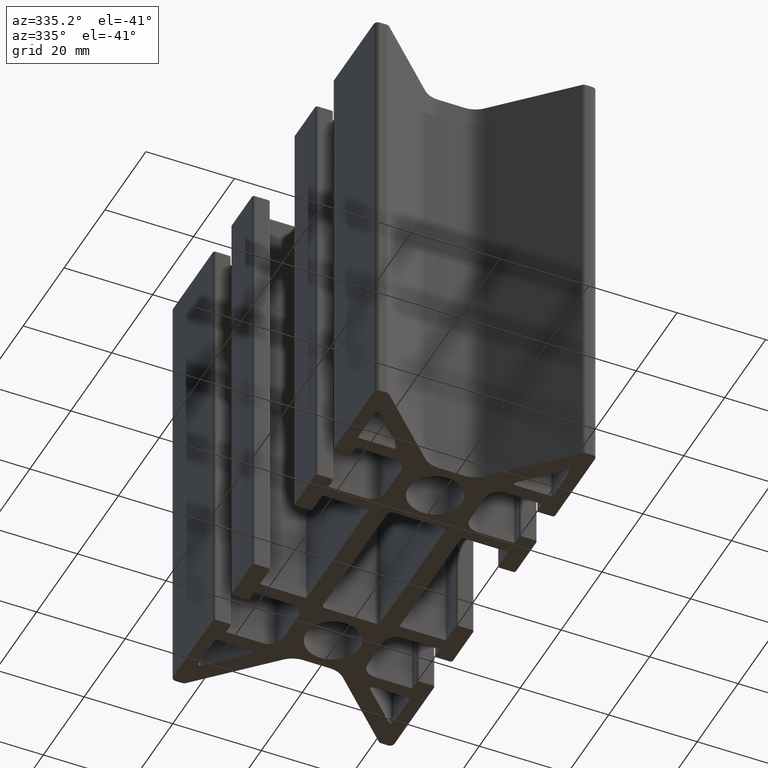
[diagram: clean part render]
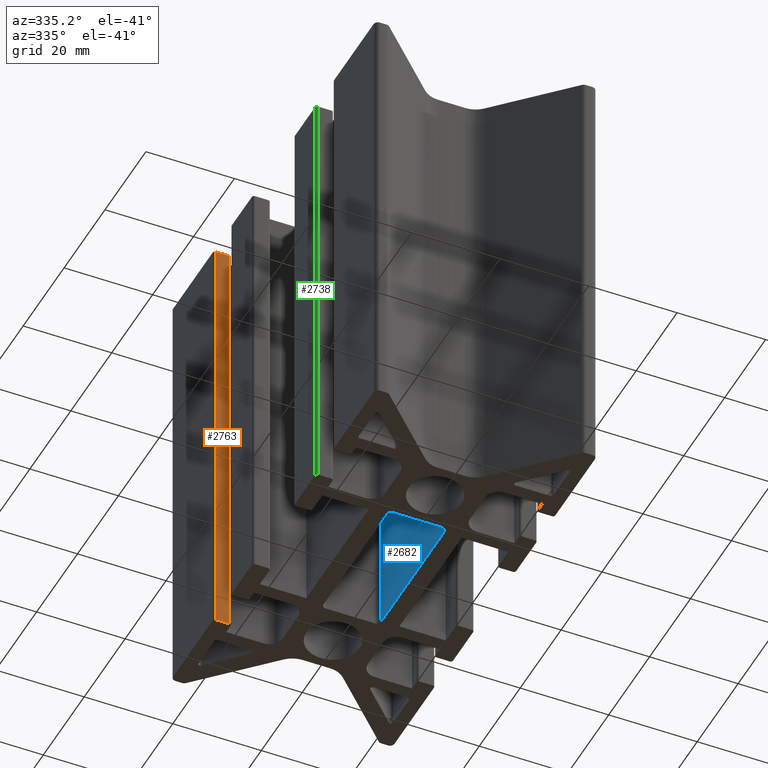
[diagram: same view with three faces highlighted in distinct colors, each labeled with its STEP entity id]
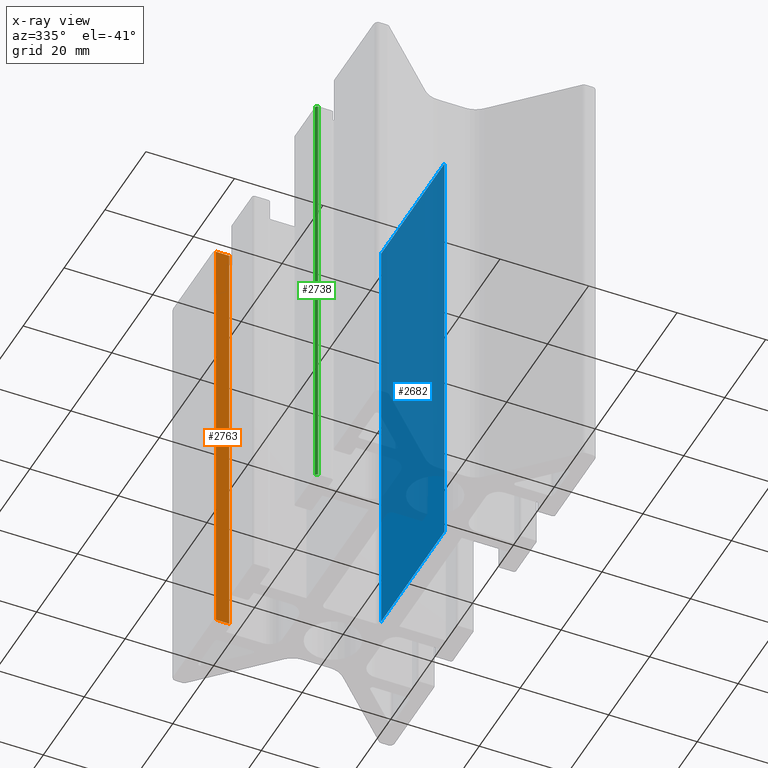
[diagram: x-ray of the same camera — body ghosted, the three highlighted faces saturated]
A machine part, auxiliary view with three faces highlighted in distinct colors.
The next image is the same camera in x-ray (body ghosted, the three faces saturated) — at least one of them is partly hidden behind the body in this view.
Their STEP definitions:

[orange] entity #2763 — the highlighted planar face has unit normal (-0, -1, 0).
#76=PLANE('',#3006);
#193=FACE_OUTER_BOUND('',#342,.T.);
#342=EDGE_LOOP('',(#2259,#2260,#2261,#2262));
#622=LINE('',#4209,#910);
#730=LINE('',#4512,#1018);
#731=LINE('',#4515,#1019);
#732=LINE('',#4516,#1020);
#910=VECTOR('',#3364,3.00000000000109);
#1018=VECTOR('',#3658,100.);
#1019=VECTOR('',#3661,3.00000000000109);
#1020=VECTOR('',#3662,100.);
#1223=VERTEX_POINT('',#4206);
#1224=VERTEX_POINT('',#4208);
#1326=VERTEX_POINT('',#4510);
#1327=VERTEX_POINT('',#4514);
#1531=EDGE_CURVE('',#1223,#1224,#622,.T.);
#1683=EDGE_CURVE('',#1223,#1326,#730,.T.);
#1684=EDGE_CURVE('',#1327,#1326,#731,.T.);
#1685=EDGE_CURVE('',#1224,#1327,#732,.T.);
#2259=ORIENTED_EDGE('',*,*,#1683,.T.);
#2260=ORIENTED_EDGE('',*,*,#1684,.F.);
#2261=ORIENTED_EDGE('',*,*,#1685,.F.);
#2262=ORIENTED_EDGE('',*,*,#1531,.F.);
#2763=ADVANCED_FACE('',(#193),#76,.T.);
#3006=AXIS2_PLACEMENT_3D('',#4513,#3659,#3660);
#3364=DIRECTION('',(-1.,1.48029736616634E-15,0.));
#3658=DIRECTION('',(0.,0.,1.));
#3659=DIRECTION('center_axis',(-1.48029736616634E-15,-1.,0.));
#3660=DIRECTION('ref_axis',(1.,-1.4210854715202E-15,0.));
#3661=DIRECTION('',(1.,-1.48029736616634E-15,0.));
#3662=DIRECTION('',(0.,0.,1.));
#4206=CARTESIAN_POINT('',(-21.5000000000007,29.1500000000119,-50.));
#4208=CARTESIAN_POINT('',(-24.5000000000018,29.150000000012,-50.));
#4209=CARTESIAN_POINT('',(-24.5000000000018,29.150000000012,-50.));
#4510=CARTESIAN_POINT('',(-21.5000000000007,29.1500000000119,50.));
#4512=CARTESIAN_POINT('',(-21.5000000000007,29.1500000000119,0.));
#4513=CARTESIAN_POINT('Origin',(-24.5000000000018,29.150000000012,0.));
#4514=CARTESIAN_POINT('',(-24.5000000000018,29.150000000012,50.));
#4515=CARTESIAN_POINT('',(-24.5000000000018,29.150000000012,50.));
#4516=CARTESIAN_POINT('',(-24.5000000000018,29.150000000012,0.));

[blue] entity #2682 — the highlighted planar face has unit normal (1, 0, 0).
#32=PLANE('',#2828);
#112=FACE_OUTER_BOUND('',#252,.T.);
#252=EDGE_LOOP('',(#1805,#1806,#1807,#1808));
#534=LINE('',#3923,#822);
#535=LINE('',#3927,#823);
#536=LINE('',#3929,#824);
#537=LINE('',#3930,#825);
#822=VECTOR('',#3104,100.);
#823=VECTOR('',#3109,30.9999999999941);
#824=VECTOR('',#3110,100.);
#825=VECTOR('',#3111,30.9999999999941);
#1111=VERTEX_POINT('',#3920);
#1112=VERTEX_POINT('',#3922);
#1113=VERTEX_POINT('',#3926);
#1114=VERTEX_POINT('',#3928);
#1389=EDGE_CURVE('',#1111,#1112,#534,.T.);
#1391=EDGE_CURVE('',#1113,#1111,#535,.T.);
#1392=EDGE_CURVE('',#1113,#1114,#536,.T.);
#1393=EDGE_CURVE('',#1112,#1114,#537,.T.);
#1805=ORIENTED_EDGE('',*,*,#1389,.F.);
#1806=ORIENTED_EDGE('',*,*,#1391,.F.);
#1807=ORIENTED_EDGE('',*,*,#1392,.T.);
#1808=ORIENTED_EDGE('',*,*,#1393,.F.);
#2682=ADVANCED_FACE('',(#112),#32,.F.);
#2828=AXIS2_PLACEMENT_3D('',#3925,#3107,#3108);
#3104=DIRECTION('',(0.,0.,1.));
#3107=DIRECTION('center_axis',(1.,3.22322813600913E-16,0.));
#3108=DIRECTION('ref_axis',(-3.5527136788005E-16,1.,0.));
#3109=DIRECTION('',(-3.22322813600913E-16,1.,0.));
#3110=DIRECTION('',(0.,0.,1.));
#3111=DIRECTION('',(3.22322813600913E-16,-1.,0.));
#3920=CARTESIAN_POINT('',(6.49999999998668,15.4999999999949,-50.));
#3922=CARTESIAN_POINT('',(6.49999999998668,15.4999999999949,50.));
#3923=CARTESIAN_POINT('',(6.49999999998668,15.4999999999949,0.));
#3925=CARTESIAN_POINT('Origin',(6.49999999998669,-15.4999999999992,0.));
#3926=CARTESIAN_POINT('',(6.49999999998669,-15.4999999999992,-50.));
#3927=CARTESIAN_POINT('',(6.49999999998669,-7.75003869417453,-50.));
#3928=CARTESIAN_POINT('',(6.49999999998669,-15.4999999999992,50.));
#3929=CARTESIAN_POINT('',(6.49999999998669,-15.4999999999992,0.));
#3930=CARTESIAN_POINT('',(6.49999999998669,-7.75003869417453,50.));

[green] entity #2738 — the highlighted cylindrical surface (edge-blend (fillet) strip) has radius 0.5 mm, axis along (0, 0, 1).
#168=FACE_OUTER_BOUND('',#317,.T.);
#317=EDGE_LOOP('',(#2159,#2160,#2161,#2162));
#452=CIRCLE('',#2903,0.5);
#496=CIRCLE('',#2972,0.5);
#690=LINE('',#4412,#978);
#691=LINE('',#4416,#979);
#978=VECTOR('',#3548,100.);
#979=VECTOR('',#3553,100.);
#1198=VERTEX_POINT('',#4156);
#1199=VERTEX_POINT('',#4158);
#1301=VERTEX_POINT('',#4410);
#1302=VERTEX_POINT('',#4414);
#1506=EDGE_CURVE('',#1198,#1199,#452,.T.);
#1633=EDGE_CURVE('',#1198,#1301,#690,.T.);
#1634=EDGE_CURVE('',#1302,#1301,#496,.T.);
#1635=EDGE_CURVE('',#1199,#1302,#691,.T.);
#2159=ORIENTED_EDGE('',*,*,#1633,.T.);
#2160=ORIENTED_EDGE('',*,*,#1634,.F.);
#2161=ORIENTED_EDGE('',*,*,#1635,.F.);
#2162=ORIENTED_EDGE('',*,*,#1506,.F.);
#2646=CYLINDRICAL_SURFACE('',#2971,0.5);
#2738=ADVANCED_FACE('',(#168),#2646,.T.);
#2903=AXIS2_PLACEMENT_3D('',#4159,#3329,#3330);
#2971=AXIS2_PLACEMENT_3D('',#4413,#3549,#3550);
#2972=AXIS2_PLACEMENT_3D('',#4415,#3551,#3552);
#3329=DIRECTION('center_axis',(0.,0.,-1.));
#3330=DIRECTION('ref_axis',(-1.,0.,0.));
#3548=DIRECTION('',(0.,0.,1.));
#3549=DIRECTION('center_axis',(0.,0.,1.));
#3550=DIRECTION('ref_axis',(-1.,0.,0.));
#3551=DIRECTION('center_axis',(0.,0.,1.));
#3552=DIRECTION('ref_axis',(-1.,0.,0.));
#3553=DIRECTION('',(0.,0.,1.));
#4156=CARTESIAN_POINT('',(-24.5000000000018,-20.84999999998,-50.));
#4158=CARTESIAN_POINT('',(-25.0000000000018,-20.34999999998,-50.));
#4159=CARTESIAN_POINT('Origin',(-24.5000000000018,-20.34999999998,-50.));
#4410=CARTESIAN_POINT('',(-24.5000000000018,-20.84999999998,50.));
#4412=CARTESIAN_POINT('',(-24.5000000000018,-20.84999999998,0.));
#4413=CARTESIAN_POINT('Origin',(-24.5000000000018,-20.34999999998,0.));
#4414=CARTESIAN_POINT('',(-25.0000000000018,-20.34999999998,50.));
#4415=CARTESIAN_POINT('Origin',(-24.5000000000018,-20.34999999998,50.));
#4416=CARTESIAN_POINT('',(-25.0000000000018,-20.34999999998,0.));